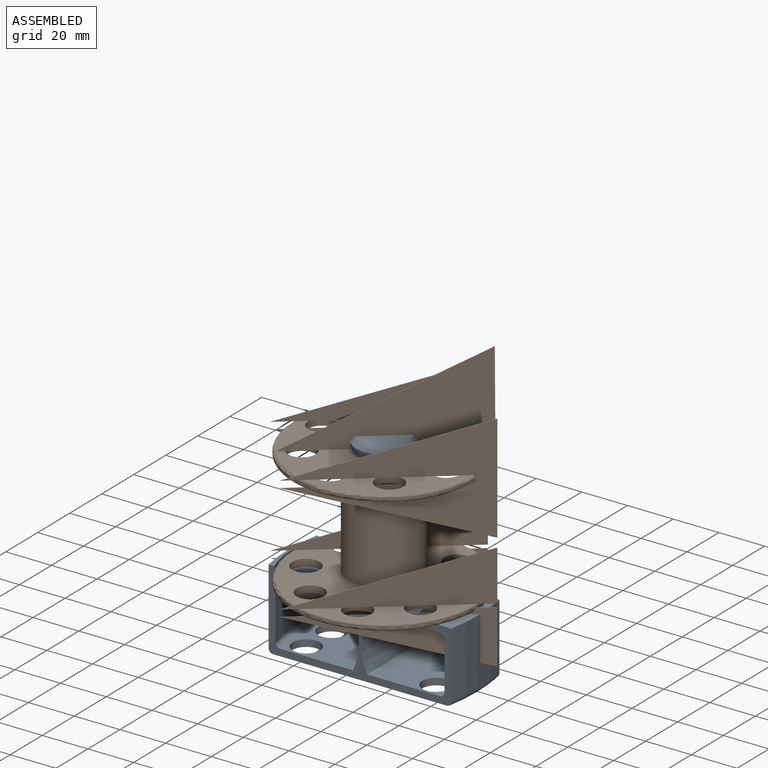
[diagram: assembled view]
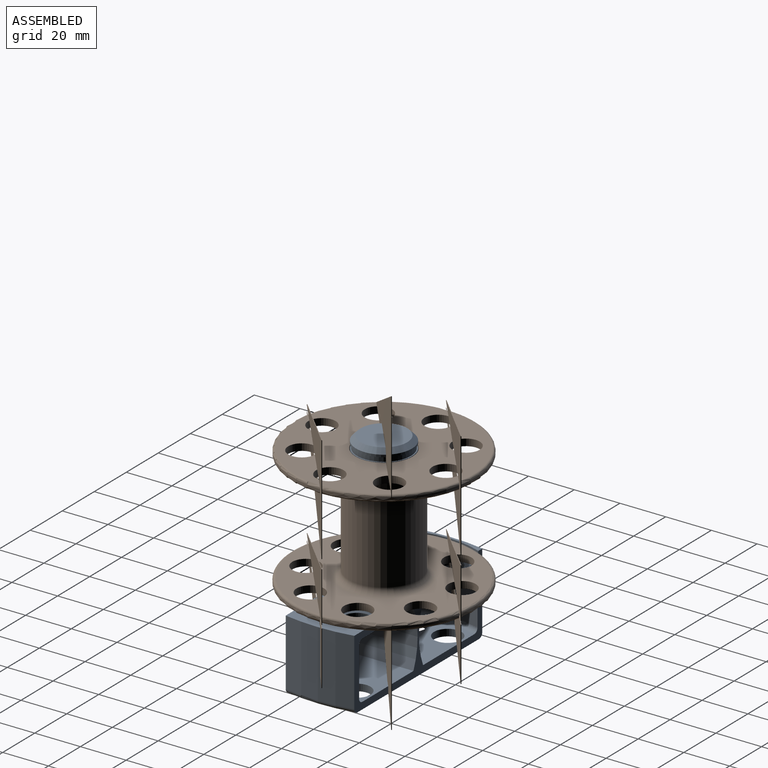
[diagram: assembled view, second angle]
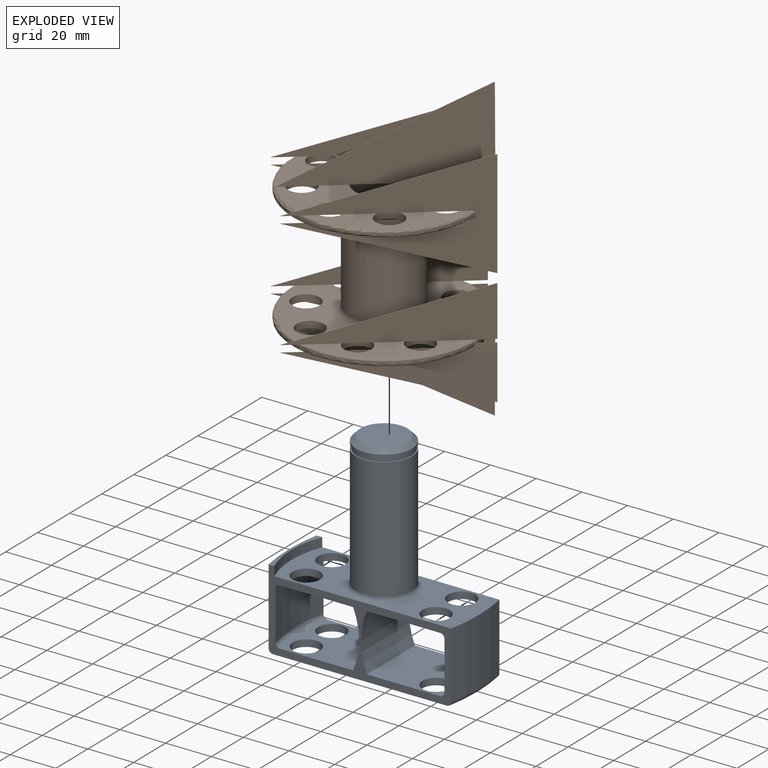
[diagram: exploded view]
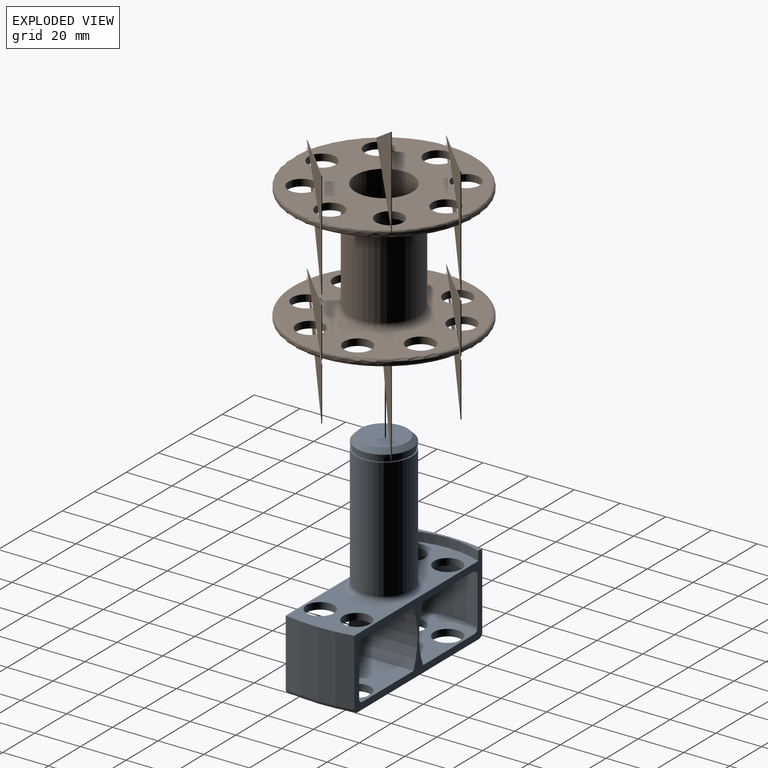
[diagram: exploded view, second angle]
ASSEMBLY  parts=2 mates=2
PART A: 40 faces, bbox 86.1x34.2x91.3 mm
  f0: plane 81.84x30mm, normal (0,0,1), area 1321.9mm2, adj f4,f9,f12,f15,f22,f24,f26,f28
  f1: plane 33.91x30mm, normal (0,0,-1), area 771.4mm2, adj f3,f4,f8,f9,f24,f26
  f2: plane 33.91x30mm, normal (0,0,-1), area 771.4mm2, adj f4,f9,f15,f18,f21,f22
  f3: cylinder r=31.5mm len=30mm, axis (0,1,0), area 771.2mm2, adj f1,f4,f5,f9
  f4: plane 80.24x35.24mm, normal (0,1,0), area 704.9mm2, adj f0,f1,f2,f3,f5,f6,f7,f8
  f5: plane 33.91x30mm, normal (0,0,1), area 771.4mm2, adj f3,f4,f6,f9,f25,f27
  f6: torus R=58mm, axis (0,0,-1), area 95.8mm2, adj f4,f5,f7,f9
  f7: cylinder r=60mm len=30mm, axis (0,0,-1), area 636.8mm2, adj f4,f6,f8,f9
  f8: torus R=58mm, axis (0,0,-1), area 95.8mm2, adj f1,f4,f7,f9
  f9: plane 80.24x35.24mm, normal (0,-1,0), area 704.8mm2, adj f0,f1,f2,f3,f5,f6,f7,f8
  f10: torus R=78mm, axis (0,0,1), area 95.2mm2, adj f4,f9,f11,f14
  f11: cylinder r=80mm len=33mm, axis (0,0,1), area 995.9mm2, adj f4,f9,f10,f39
  f12: cylinder r=80mm len=30mm, axis (0,0,1), area 875.2mm2, adj f0,f4,f9,f13
  f13: torus R=78mm, axis (0,0,1), area 95.2mm2, adj f4,f9,f12,f14
  f14: plane 78.84x30mm, normal (0,0,-1), area 1883.7mm2, adj f4,f9,f10,f13,f16,f23,f25,f27
  f15: cylinder r=6mm len=12mm, axis (0,0,1), area 113.1mm2, adj f0,f2
  f16: cylinder r=6mm len=12mm, axis (0,0,1), area 113.1mm2, adj f14,f17
  f17: plane 33.91x30mm, normal (0,0,1), area 771.4mm2, adj f4,f9,f16,f18,f19,f23
  f18: cylinder r=31.5mm len=30mm, axis (0,-1,0), area 771.2mm2, adj f2,f4,f9,f17
  f19: torus R=58mm, axis (0,0,1), area 95.8mm2, adj f4,f9,f17,f20
  f20: cylinder r=60mm len=30mm, axis (0,0,1), area 636.8mm2, adj f4,f9,f19,f21
  f21: torus R=58mm, axis (0,0,1), area 95.8mm2, adj f2,f4,f9,f20
  f22: cylinder r=6mm len=12mm, axis (0,0,1), area 113.1mm2, adj f0,f2
  f23: cylinder r=6mm len=12mm, axis (0,0,1), area 113.1mm2, adj f14,f17
  f24: cylinder r=6mm len=12mm, axis (0,0,1), area 113.1mm2, adj f0,f1
  f25: cylinder r=6mm len=12mm, axis (0,0,1), area 113.1mm2, adj f5,f14
  f26: cylinder r=6mm len=12mm, axis (0,0,1), area 113.1mm2, adj f0,f1
  f27: cylinder r=6mm len=12mm, axis (0,0,1), area 113.1mm2, adj f5,f14
  f28: torus R=14.25mm, axis (0,0,1), area 256.2mm2, adj f0,f29
  f29: cylinder r=12.25mm len=53mm, axis (0,0,1), area 4079.4mm2, adj f28,f30
  f30: plane 24.5x24.5mm, normal (0,0,1), area 37.7mm2, adj f29,f31
  f31: cylinder r=11.75mm len=23.5mm, axis (0,0,1), area 151.3mm2, adj f30,f32
  f32: plane 24.5x24.5mm, normal (0,0,-1), area 37.7mm2, adj f31,f33
  f33: cylinder r=12.25mm len=24.5mm, axis (0,0,1), area 77mm2, adj f32,f34
  f34: cone r=11.25mm half-angle=45deg, axis (0,0,-1), area 199.9mm2, adj f33,f35
  f35: plane 20.5x20.5mm, normal (0,0,1), area 330mm2, adj f34,f36
  f36: cylinder r=0.14mm len=3mm, axis (0,0,1), area 2.6mm2, adj f35,f37
  f37: plane 0.27x0.27mm, normal (0,0,1), area 0.1mm2, adj f36
  f38: cylinder r=40mm len=30mm, axis (0,0,-1), area 123mm2, adj f0,f4,f9,f39
  f39: plane 30x3.92mm, normal (0,0,1), area 44.6mm2, adj f4,f9,f11,f38
PART B: 116 faces, bbox 86.9x132.3x86.9 mm
  f0: plane 59.66x13.88mm, normal (0,-1,0), area 411.9mm2, adj f40,f41,f42,f114
  f1: plane 78x49.75mm, normal (0,-1,0), area 1955.7mm2, adj f34,f35,f36,f37,f38,f39,f40,f41
  f2: torus R=39mm, axis (0,1,0), area 305.7mm2, adj f4,f5,f7,f8,f32,f79,f84,f87
  f3: torus R=39mm, axis (0,1,0), area 42.2mm2, adj f4,f5,f93,f99
  f4: plane 78x24.8mm, normal (0,1,0), area 1263.4mm2, adj f2,f3,f20,f34,f39,f40,f41,f93
  f5: cylinder r=40mm len=80mm, axis (0,-1,0), area 251mm2, adj f2,f3,f6,f42,f84,f85,f86,f92
  f6: torus R=39mm, axis (0,1,0), area 42.1mm2, adj f5,f7,f85,f98
  f7: plane 78x24.8mm, normal (0,1,0), area 1263.4mm2, adj f2,f6,f20,f35,f36,f37,f38,f85
  f8: plane 59.66x13.88mm, normal (0,1,0), area 411.9mm2, adj f2,f36,f37,f84
  f9: cylinder r=40mm len=80mm, axis (0,-1,0), area 197mm2, adj f14,f16,f59,f72
  f10: torus R=39mm, axis (0,-1,0), area 84.8mm2, adj f12,f15,f60,f73
  f11: plane 59.66x13.88mm, normal (0,1,0), area 450.9mm2, adj f16,f25,f26,f27,f72
  f12: plane 78x49.75mm, normal (0,1,0), area 1879.3mm2, adj f10,f16,f24,f25,f26,f27,f28,f29
  f13: plane 59.8x13.95mm, normal (0,-1,0), area 450.9mm2, adj f14,f25,f26,f27,f72
  f14: torus R=39mm, axis (0,-1,0), area 305.7mm2, adj f9,f13,f18,f19,f22,f49,f55,f59
  f15: cylinder r=40mm len=49.75mm, axis (0,-1,0), area 53.7mm2, adj f10,f17,f43,f50,f60,f73
  f16: torus R=39mm, axis (0,-1,0), area 305.3mm2, adj f9,f11,f12,f21,f59,f63,f72,f76
  f17: torus R=39mm, axis (0,-1,0), area 42.2mm2, adj f15,f18,f51,f60
  f18: plane 78.01x24.9mm, normal (0,-1,0), area 1228.2mm2, adj f14,f17,f20,f24,f28,f29,f30,f31
  f19: plane 59.8x13.95mm, normal (0,-1,0), area 450.9mm2, adj f14,f29,f30,f31,f59
  f20: cylinder r=12.5mm len=54mm, axis (0,-1,0), area 4241.2mm2, adj f4,f7,f18,f22,f48,f95
  f21: plane 59.66x13.88mm, normal (0,1,0), area 450.9mm2, adj f16,f29,f30,f31,f59
  f22: plane 78.01x24.9mm, normal (0,-1,0), area 1228.2mm2, adj f14,f20,f24,f25,f26,f27,f28,f43
  f23: cylinder r=15.5mm len=42mm, axis (0,-1,0), area 4090.4mm2, adj f44,f45
  f24: cylinder r=6mm len=12mm, axis (0,-1,0), area 113.1mm2, adj f12,f18,f22,f46
  f25: cylinder r=6mm len=12mm, axis (0,-1,0), area 113.1mm2, adj f11,f12,f13,f22,f67,f75
  f26: cylinder r=6mm len=12mm, axis (0,-1,0), area 113.1mm2, adj f11,f12,f13,f22,f66,f77
  f27: cylinder r=6mm len=12mm, axis (0,-1,0), area 113.1mm2, adj f11,f12,f13,f22,f71,f74
  f28: cylinder r=6mm len=12mm, axis (0,-1,0), area 113.1mm2, adj f12,f18,f22,f47
  f29: cylinder r=6mm len=12mm, axis (0,-1,0), area 113.1mm2, adj f12,f18,f19,f21,f53,f64
  f30: cylinder r=6mm len=12mm, axis (0,-1,0), area 113.1mm2, adj f12,f18,f19,f21,f54,f62
  f31: cylinder r=6mm len=12mm, axis (0,-1,0), area 113.1mm2, adj f12,f18,f19,f21,f58,f61
  f32: plane 59.66x13.88mm, normal (0,1,0), area 411.9mm2, adj f2,f40,f41,f92
  f33: plane 59.66x13.88mm, normal (0,-1,0), area 411.9mm2, adj f36,f37,f42,f106
  f34: cylinder r=6mm len=12mm, axis (0,1,0), area 113.1mm2, adj f1,f4
  f35: cylinder r=6mm len=12mm, axis (0,1,0), area 113.1mm2, adj f1,f7
  f36: cylinder r=6mm len=12mm, axis (0,1,0), area 113.1mm2, adj f1,f7,f8,f33,f82,f101
  f37: cylinder r=6mm len=12mm, axis (0,1,0), area 113.1mm2, adj f1,f7,f8,f33,f80,f100
  f38: cylinder r=6mm len=12mm, axis (0,1,0), area 113.1mm2, adj f1,f7
  f39: cylinder r=6mm len=12mm, axis (0,1,0), area 113.1mm2, adj f1,f4
  f40: cylinder r=6mm len=12mm, axis (0,1,0), area 113.1mm2, adj f0,f1,f4,f32,f91,f109
  f41: cylinder r=6mm len=12mm, axis (0,1,0), area 113.1mm2, adj f0,f1,f4,f32,f88,f108
  f42: torus R=39mm, axis (0,1,0), area 391.2mm2, adj f0,f1,f5,f33,f102,f104,f110,f113
  f43: torus R=39mm, axis (0,-1,0), area 42.1mm2, adj f15,f22,f52,f73
  f44: torus R=18.5mm, axis (0,-1,0), area 491.2mm2, adj f12,f23
  f45: torus R=18.5mm, axis (0,1,0), area 491.2mm2, adj f1,f23
  f46: plane 12x0.25mm, normal (0,1,0), area 3mm2, adj f24,f51,f52
  f47: plane 12x0.25mm, normal (0,1,0), area 3mm2, adj f28,f51,f52
  f48: plane 25x0.25mm, normal (0,1,0), area 6.2mm2, adj f20,f51,f52
  f49: plane 78.82x39mm, normal (0,-0.9,0.44), area 22mm2, adj f14,f50,f51,f52
  f50: plane 40x0.25mm, normal (0,0,-1), area 10mm2, adj f15,f49,f51,f52
  f51: plane 79.01x40.01mm, normal (1,0,0), area 1540.6mm2, adj f17,f18,f46,f47,f48,f49,f50
  f52: plane 79.01x40.01mm, normal (-1,0,0), area 1540.6mm2, adj f22,f43,f46,f47,f48,f49,f50
  f53: plane 8.21x0.25mm, normal (0,1,0), area 2mm2, adj f29,f59,f60
  f54: plane 8.92x0.25mm, normal (0,1,0), area 2.2mm2, adj f30,f59,f60
  f55: plane 9.17x0.25mm, normal (0,1,0), area 2.3mm2, adj f14,f56,f59,f60
  f56: plane 78x22mm, normal (0,-0.96,0.27), area 20.3mm2, adj f55,f57,f59,f60
  f57: plane 47x0.25mm, normal (0,0,-1), area 11.8mm2, adj f56,f59,f60,f65
  f58: plane 8.92x0.25mm, normal (0,1,0), area 2.2mm2, adj f31,f59,f60
  f59: plane 78.32x47.32mm, normal (1,0,0), area 1740.2mm2, adj f9,f14,f16,f19,f21,f53,f54,f55
  f60: plane 78.31x47.31mm, normal (-1,0,0), area 1739.6mm2, adj f10,f12,f15,f17,f18,f53,f54,f55
  f61: plane 8.92x0.25mm, normal (0,-1,0), area 2.2mm2, adj f31,f59,f60
  f62: plane 8.92x0.25mm, normal (0,-1,0), area 2.2mm2, adj f30,f59,f60
  f63: plane 9.17x0.25mm, normal (0,-1,0), area 2.3mm2, adj f16,f59,f60,f65
  f64: plane 8.21x0.25mm, normal (0,-1,0), area 2mm2, adj f29,f59,f60
  f65: plane 78x22mm, normal (0,0.96,0.27), area 20.3mm2, adj f57,f59,f60,f63
  f66: plane 8.21x0.25mm, normal (0,1,0), area 2mm2, adj f26,f72,f73
  f67: plane 8.92x0.25mm, normal (0,1,0), area 2.2mm2, adj f25,f72,f73
  f68: plane 9.17x0.25mm, normal (0,1,0), area 2.3mm2, adj f14,f69,f72,f73
  f69: plane 78x22mm, normal (0,-0.96,0.27), area 20.3mm2, adj f68,f70,f72,f73
  f70: plane 47x0.25mm, normal (0,0,-1), area 11.8mm2, adj f69,f72,f73,f78
  f71: plane 8.92x0.25mm, normal (0,1,0), area 2.2mm2, adj f27,f72,f73
  f72: plane 78.32x47.32mm, normal (-1,0,0), area 1740.2mm2, adj f9,f11,f13,f14,f16,f66,f67,f68
  f73: plane 78.31x47.31mm, normal (1,0,0), area 1739.6mm2, adj f10,f12,f15,f22,f43,f66,f67,f68
  f74: plane 8.92x0.25mm, normal (0,-1,0), area 2.2mm2, adj f27,f72,f73
  f75: plane 8.92x0.25mm, normal (0,-1,0), area 2.2mm2, adj f25,f72,f73
  f76: plane 9.17x0.25mm, normal (0,-1,0), area 2.3mm2, adj f16,f72,f73,f78
  f77: plane 8.21x0.25mm, normal (0,-1,0), area 2mm2, adj f26,f72,f73
  f78: plane 78x22mm, normal (0,0.96,0.27), area 20.3mm2, adj f70,f72,f73,f76
  f79: plane 9.17x0.25mm, normal (0,-1,0), area 2.3mm2, adj f2,f81,f84,f85
  f80: plane 11.22x0.25mm, normal (0,-1,0), area 2.8mm2, adj f37,f84,f85
  f81: plane 78x22mm, normal (0,0.96,0.27), area 20.3mm2, adj f79,f83,f84,f85
  f82: plane 11.22x0.25mm, normal (0,-1,0), area 2.8mm2, adj f36,f84,f85
  f83: plane 23.5x0.25mm, normal (0,0,-1), area 5.9mm2, adj f81,f84,f85,f86
  f84: plane 78x23.5mm, normal (1,0,0), area 870.1mm2, adj f2,f5,f8,f79,f80,f81,f82,f83
  f85: plane 78.31x23.81mm, normal (-1,0,0), area 869.8mm2, adj f5,f6,f7,f79,f80,f81,f82,f83
  f86: plane 7.88x0.25mm, normal (0,-1,0), area 1.9mm2, adj f5,f83,f84,f85
  f87: plane 9.17x0.25mm, normal (0,-1,0), area 2.3mm2, adj f2,f89,f92,f93
  f88: plane 11.22x0.25mm, normal (0,-1,0), area 2.8mm2, adj f41,f92,f93
  f89: plane 78x22mm, normal (0,0.96,0.27), area 20.3mm2, adj f87,f90,f92,f93
  f90: plane 23.5x0.25mm, normal (0,0,-1), area 5.9mm2, adj f89,f92,f93,f94
  f91: plane 11.22x0.25mm, normal (0,-1,0), area 2.8mm2, adj f40,f92,f93
  f92: plane 78x23.5mm, normal (-1,0,0), area 870.1mm2, adj f2,f5,f32,f87,f88,f89,f90,f91
  f93: plane 78.31x23.81mm, normal (1,0,0), area 869.8mm2, adj f3,f4,f5,f87,f88,f89,f90,f91
  f94: plane 7.88x0.25mm, normal (0,-1,0), area 1.9mm2, adj f5,f90,f92,f93
  f95: plane 25x0.25mm, normal (0,-1,0), area 6.2mm2, adj f20,f98,f99
  f96: plane 40x0.25mm, normal (0,0,-1), area 10mm2, adj f5,f97,f98,f99
  f97: plane 78.82x39mm, normal (0,0.9,0.44), area 22mm2, adj f2,f96,f98,f99
  f98: plane 79.01x40.01mm, normal (1,0,0), area 1540.6mm2, adj f6,f7,f95,f96,f97
  f99: plane 79.01x40.01mm, normal (-1,0,0), area 1540.6mm2, adj f3,f4,f95,f96,f97
  f100: plane 11.22x0.25mm, normal (0,1,0), area 2.8mm2, adj f37,f106,f107
  f101: plane 11.22x0.25mm, normal (0,1,0), area 2.8mm2, adj f36,f106,f107
  f102: plane 9.17x0.25mm, normal (0,1,0), area 2.3mm2, adj f42,f105,f106,f107
  f103: plane 22x0.25mm, normal (0,0,-1), area 5.5mm2, adj f104,f105,f106,f107
  f104: plane 9.17x0.25mm, normal (0,1,0), area 2.3mm2, adj f42,f103,f106,f107
  f105: plane 78x22mm, normal (0,-0.96,0.27), area 20.3mm2, adj f102,f103,f106,f107
  f106: plane 78x22mm, normal (1,0,0), area 858mm2, adj f33,f100,f101,f102,f103,f104,f105
  f107: plane 78x22mm, normal (-1,0,0), area 858mm2, adj f1,f100,f101,f102,f103,f104,f105
  f108: plane 11.22x0.25mm, normal (0,1,0), area 2.8mm2, adj f41,f114,f115
  f109: plane 11.22x0.25mm, normal (0,1,0), area 2.8mm2, adj f40,f114,f115
  f110: plane 9.17x0.25mm, normal (0,1,0), area 2.3mm2, adj f42,f112,f114,f115
  f111: plane 22x0.25mm, normal (0,0,-1), area 5.5mm2, adj f112,f113,f114,f115
  f112: plane 78x22mm, normal (0,-0.96,0.27), area 20.3mm2, adj f110,f111,f114,f115
  f113: plane 9.17x0.25mm, normal (0,1,0), area 2.3mm2, adj f42,f111,f114,f115
  f114: plane 78x22mm, normal (-1,0,0), area 858mm2, adj f0,f108,f109,f110,f111,f112,f113
  f115: plane 78x22mm, normal (1,0,0), area 858mm2, adj f1,f108,f109,f110,f111,f112,f113
PLACE A t=(-1.64,-58.32,-29.84)mm fixed
PLACE B rot(axis=(-0.32,-0.67,0.67),144.5deg) t=(-1.64,-58.32,28.16)mm
MATE planar A.f28 <-> B.f2  axis (0,0,1) through (-1.64,-58.32,28.16)mm
MATE cylindrical B.f2 <-> A.f28  axis (0,0,1) through (-1.64,-58.32,-25.84)mm
